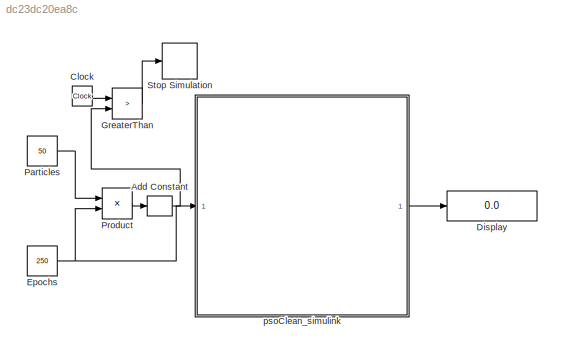
MODEL slx_dc23dc20ea8c
KIND model
CONFIG AbsTol = auto
CONFIG EnableMultiTasking = on
CONFIG FixedStep = 1
CONFIG MaxStep = 1
CONFIG MinStep = 1
CONFIG RelTol = 1e-3
CONFIG SampleTimeConstraint = Unconstrained
CONFIG Solver = FixedStepDiscrete
CONFIG SolverName = FixedStepDiscrete
CONFIG StartTime = 0.0
CONFIG StopTime = Inf
BLOCK [Bias] Add Constant
  Bias = 50
  SaturateOnIntegerOverflow = off
BLOCK [Clock] Clock
BLOCK [Display] Display
  Decimation = 1
  Ports = [1]
BLOCK [Constant] Epochs
  OutDataTypeStr = single
  Value = 250
BLOCK [RelationalOperator] GreaterThan
  InputSameDT = off
  Operator = >
  OutDataTypeStr = boolean
  Ports = [2, 1]
  RndMeth = Simplest
BLOCK [Constant] Particles
  OutDataTypeStr = single
  Value = 50
BLOCK [Product] Product
  Ports = [2, 1]
BLOCK [Stop] Stop Simulation
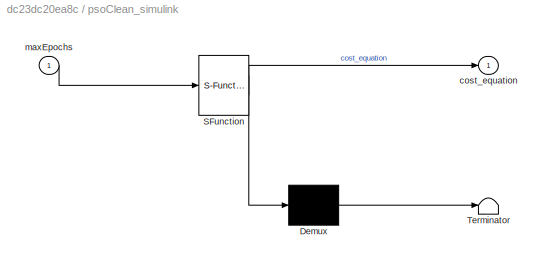
BLOCK [SubSystem] psoClean_simulink
  ErrorFcn = Stateflow.Translate.translate
  PermitHierarchicalResolution = ExplicitOnly
  Ports = [1, 1]
  RequestExecContextInheritance = off
  SFBlockType = MATLAB Function
  TreatAsAtomicUnit = on
BLOCK [Demux] psoClean_simulink/ Demux 
  Outputs = 1
  Ports = [1, 1]
BLOCK [S-Function] psoClean_simulink/ SFunction 
  EnableBusSupport = on
  FunctionName = sf_sfun
  PortCounts = [1 2]
  Ports = [1, 2]
  SFcnIsStateOwnerBlock = off
  SFunctionDeploymentMode = off
  Tag = Stateflow S-Function 2
BLOCK [Terminator] psoClean_simulink/ Terminator 
BLOCK [Outport] psoClean_simulink/cost_equation
BLOCK [Inport] psoClean_simulink/maxEpochs
LINE Add Constant:1 -> GreaterThan:2
LINE Clock:1 -> GreaterThan:1
NET Epochs:1 -> Product:2, psoClean_simulink:1
LINE GreaterThan:1 -> Stop Simulation:1
LINE Particles:1 -> Product:1
LINE Product:1 -> Add Constant:1
LINE psoClean_simulink:1 -> Display:1
note: NET lines group one-source signal fan-out (src -> all destinations, sorted); 1:1 wires keep LINE
CHART psoClean_simulink states=1 transitions=1
  STATE_LABEL 'eML_blk_kernel()'
  STATE_LABEL 'SCRIPT:\nfunction cost_equation  = psoClean(maxEpochs)\n\n\npersistent currentEpoch currentPar particlesTable neighborIndex EV_bat_n SoC_initial_ev dt Ev_bat_capacity SoC_target_ev Tmax ...\n    Tmin T_in_initial V C rho Uwall Uwindow Fwall Fwindow aw Rsej taf_window SC QEC_max QEC_min COP SOC_EV_penalty_multiplier SOC_EV_target_penalty_multiplier ...\n    PPEV_diff_penalty_multiplier offset_variable pa...<+3608ch>'
CHART  states=0 transitions=0
